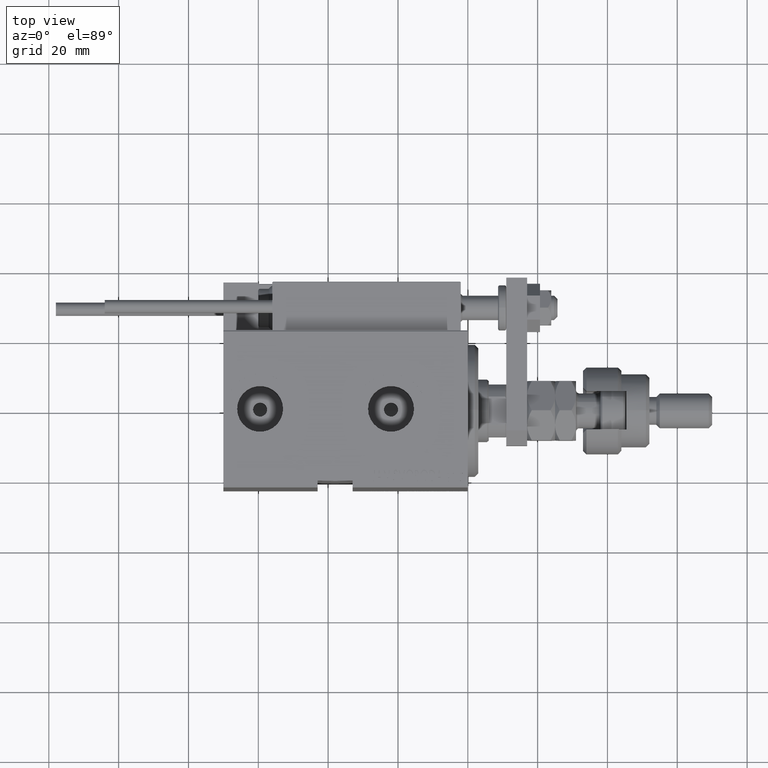
[diagram: clean part render]
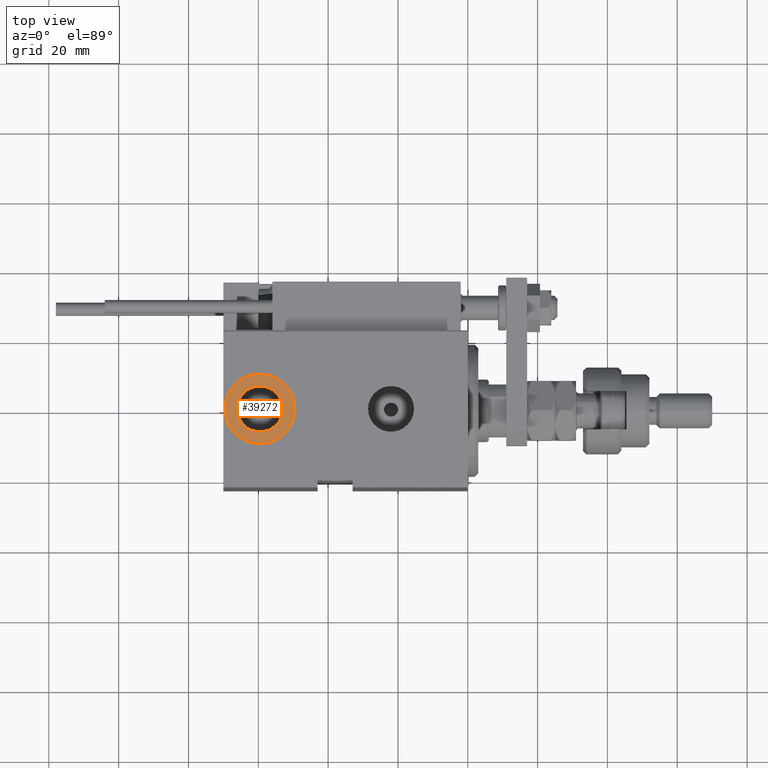
[diagram: same view with one face highlighted and labeled with its STEP entity id]
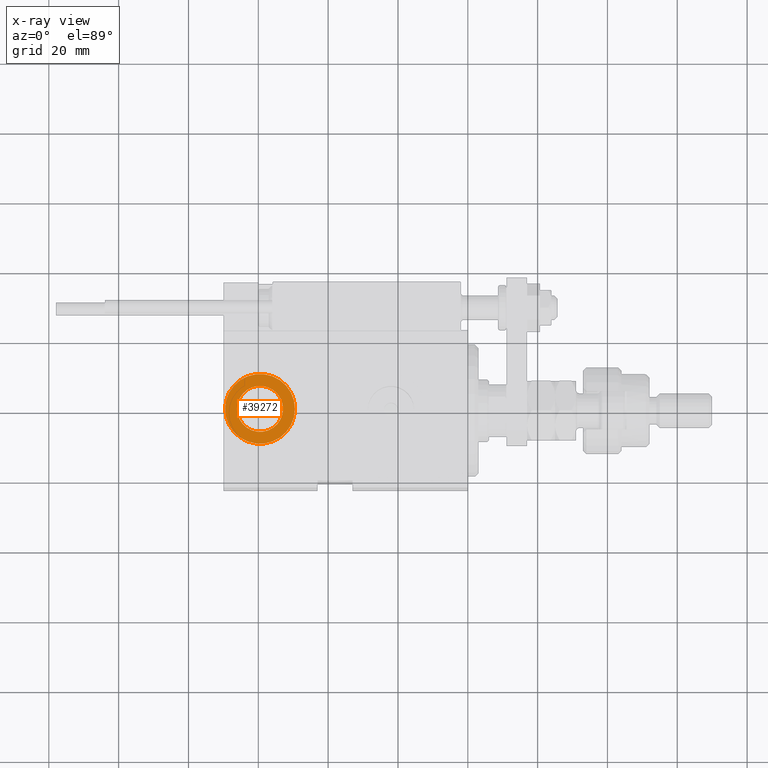
[diagram: x-ray of the same camera — body ghosted, the highlighted face saturated]
A machine part, top view. The second image highlights one B-rep face of the part: STEP entity #39272.
The next image is the same camera in x-ray: the body ghosted, the highlighted face saturated — about 0% of this face is hidden behind the body in this view.
In plain terms, the highlighted planar face has unit normal (0, 0, 1).
Its self-contained STEP definition (entity closure, byte-faithful):
#220 = ORIENTED_EDGE ( 'NONE', *, *, #30254, .T. ) ;
#326 = CARTESIAN_POINT ( 'NONE',  ( 59.50000000000000711, -5.011423375044110611E-15, 32.39999999999999858 ) ) ;
#357 = CARTESIAN_POINT ( 'NONE',  ( 66.07999999999999829, -5.011423375044110611E-15, 32.39999999999999858 ) ) ;
#781 = CARTESIAN_POINT ( 'NONE',  ( 59.50000000000000711, -5.011423375044110611E-15, 32.39999999999999858 ) ) ;
#1068 = VERTEX_POINT ( 'NONE', #36730 ) ;
#1096 = DIRECTION ( 'NONE',  ( 1.000000000000000000, 0.000000000000000000, 0.000000000000000000 ) ) ;
#1628 = CARTESIAN_POINT ( 'NONE',  ( 59.50000000000000711, -5.011423375044110611E-15, 32.39999999999999858 ) ) ;
#2716 = FACE_BOUND ( 'NONE', #42161, .T. ) ;
#3476 = CIRCLE ( 'NONE', #33917, 6.579999999999995630 ) ;
#3979 = ORIENTED_EDGE ( 'NONE', *, *, #48319, .T. ) ;
#4735 = AXIS2_PLACEMENT_3D ( 'NONE', #1628, #9541, #1096 ) ;
#5490 = DIRECTION ( 'NONE',  ( 0.000000000000000000, 0.000000000000000000, 1.000000000000000000 ) ) ;
#9541 = DIRECTION ( 'NONE',  ( 0.000000000000000000, 0.000000000000000000, 1.000000000000000000 ) ) ;
#10168 = DIRECTION ( 'NONE',  ( 0.000000000000000000, 0.000000000000000000, 1.000000000000000000 ) ) ;
#11645 = EDGE_LOOP ( 'NONE', ( #3979, #220 ) ) ;
#13148 = DIRECTION ( 'NONE',  ( 1.000000000000000000, 0.000000000000000000, 0.000000000000000000 ) ) ;
#13873 = EDGE_CURVE ( 'NONE', #39931, #29838, #3476, .T. ) ;
#14528 = CARTESIAN_POINT ( 'NONE',  ( 59.50000000000000711, -5.011423375044110611E-15, 32.39999999999999858 ) ) ;
#18465 = AXIS2_PLACEMENT_3D ( 'NONE', #781, #50705, #46877 ) ;
#19365 = DIRECTION ( 'NONE',  ( 1.000000000000000000, 0.000000000000000000, -0.000000000000000000 ) ) ;
#23724 = CIRCLE ( 'NONE', #35068, 10.00000000000000178 ) ;
#26803 = DIRECTION ( 'NONE',  ( 1.000000000000000000, 0.000000000000000000, 0.000000000000000000 ) ) ;
#29838 = VERTEX_POINT ( 'NONE', #357 ) ;
#30254 = EDGE_CURVE ( 'NONE', #1068, #40528, #40471, .T. ) ;
#31637 = PLANE ( 'NONE',  #39184 ) ;
#33917 = AXIS2_PLACEMENT_3D ( 'NONE', #14528, #10168, #26803 ) ;
#35031 = CIRCLE ( 'NONE', #18465, 6.579999999999995630 ) ;
#35068 = AXIS2_PLACEMENT_3D ( 'NONE', #326, #5490, #13148 ) ;
#36730 = CARTESIAN_POINT ( 'NONE',  ( 49.50000000000000000, -3.786776575896758341E-15, 32.39999999999999858 ) ) ;
#39184 = AXIS2_PLACEMENT_3D ( 'NONE', #48288, #47484, #19365 ) ;
#39272 = ADVANCED_FACE ( 'NONE', ( #2716, #44190 ), #31637, .T. ) ;
#39931 = VERTEX_POINT ( 'NONE', #44533 ) ;
#40450 = ORIENTED_EDGE ( 'NONE', *, *, #47575, .F. ) ;
#40471 = CIRCLE ( 'NONE', #4735, 10.00000000000000178 ) ;
#40528 = VERTEX_POINT ( 'NONE', #51500 ) ;
#42161 = EDGE_LOOP ( 'NONE', ( #40450, #46324 ) ) ;
#44190 = FACE_OUTER_BOUND ( 'NONE', #11645, .T. ) ;
#44533 = CARTESIAN_POINT ( 'NONE',  ( 52.92000000000000881, -4.205605781205153147E-15, 32.39999999999999858 ) ) ;
#46324 = ORIENTED_EDGE ( 'NONE', *, *, #13873, .F. ) ;
#46877 = DIRECTION ( 'NONE',  ( 1.000000000000000000, 0.000000000000000000, 0.000000000000000000 ) ) ;
#47484 = DIRECTION ( 'NONE',  ( 0.000000000000000000, 0.000000000000000000, 1.000000000000000000 ) ) ;
#47575 = EDGE_CURVE ( 'NONE', #29838, #39931, #35031, .T. ) ;
#48288 = CARTESIAN_POINT ( 'NONE',  ( 59.50000000000000711, -5.011423375044110611E-15, 32.39999999999999858 ) ) ;
#48319 = EDGE_CURVE ( 'NONE', #40528, #1068, #23724, .T. ) ;
#50705 = DIRECTION ( 'NONE',  ( 0.000000000000000000, 0.000000000000000000, 1.000000000000000000 ) ) ;
#51500 = CARTESIAN_POINT ( 'NONE',  ( 69.50000000000000000, -5.011423375044110611E-15, 32.39999999999999858 ) ) ;